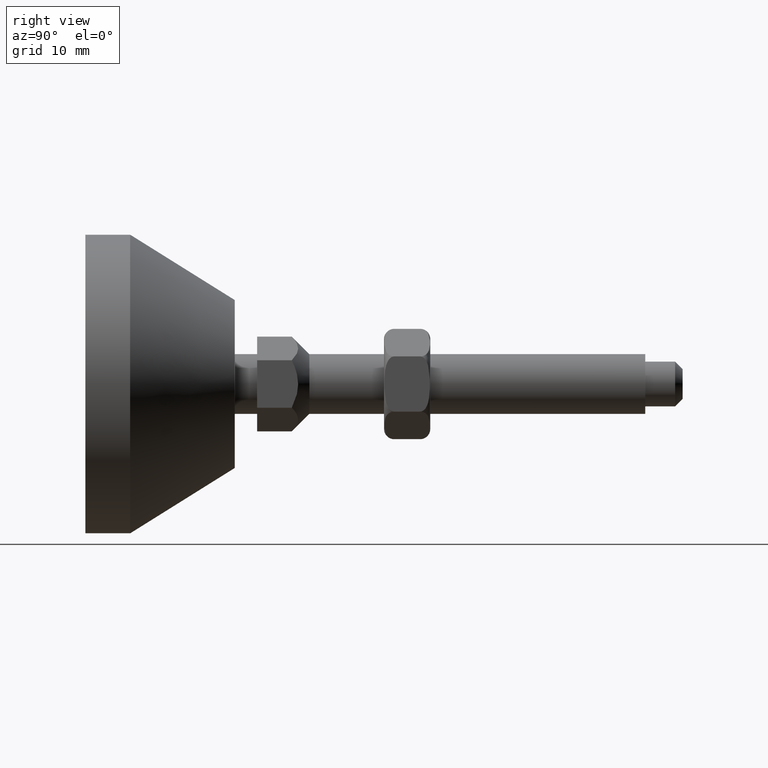
[diagram: clean part render]
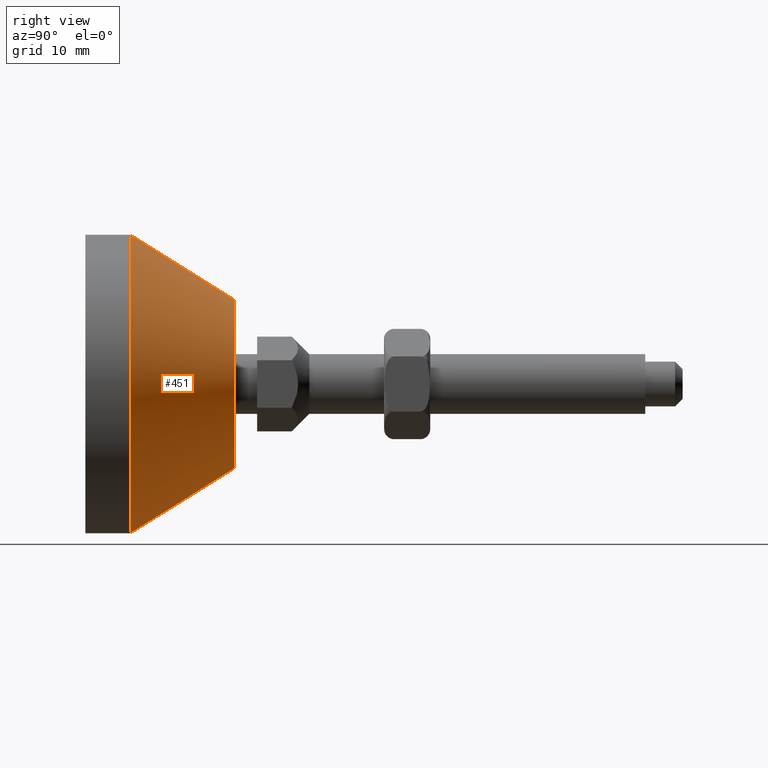
[diagram: same view with one face highlighted and labeled with its STEP entity id]
A machine part, right view. The second image highlights one B-rep face of the part: STEP entity #451.
In plain terms, the highlighted conical surface has half-angle 32 deg.
Its self-contained STEP definition (entity closure, byte-faithful):
#77 = CARTESIAN_POINT ( 'NONE',  ( 0.0000000000000000000, 20.00000000000000000, 11.25182907326940600 ) ) ;
#84 = CARTESIAN_POINT ( 'NONE',  ( -1.913622622103978900E-015, 20.00000000000000000, -11.25182907326940600 ) ) ;
#89 = CARTESIAN_POINT ( 'NONE',  ( 2.449293598294706500E-015, 6.000000000000000000, 20.00000000000000000 ) ) ;
#183 = CARTESIAN_POINT ( 'NONE',  ( 0.0000000000000000000, 6.000000000000000000, -20.00000000000000000 ) ) ;
#186 = DIRECTION ( 'NONE',  ( 0.0000000000000000000, 0.0000000000000000000, 1.000000000000000000 ) ) ;
#200 = DIRECTION ( 'NONE',  ( -0.0000000000000000000, -1.000000000000000000, -0.0000000000000000000 ) ) ;
#207 = CARTESIAN_POINT ( 'NONE',  ( 0.0000000000000000000, 6.000000000000000000, 0.0000000000000000000 ) ) ;
#241 = AXIS2_PLACEMENT_3D ( 'NONE', #207, #200, #186 ) ;
#247 = VERTEX_POINT ( 'NONE', #183 ) ;
#394 = EDGE_LOOP ( 'NONE', ( #628, #629, #630, #631 ) ) ;
#451 = ADVANCED_FACE ( 'NONE', ( #673 ), #674, .T. ) ;
#506 = EDGE_CURVE ( 'NONE', #1470, #247, #736, .T. ) ;
#508 = EDGE_CURVE ( 'NONE', #1463, #1475, #739, .T. ) ;
#509 = EDGE_CURVE ( 'NONE', #1475, #247, #743, .T. ) ;
#536 = EDGE_CURVE ( 'NONE', #1463, #1470, #782, .T. ) ;
#628 = ORIENTED_EDGE ( 'NONE', *, *, #506, .F. ) ;
#629 = ORIENTED_EDGE ( 'NONE', *, *, #536, .F. ) ;
#630 = ORIENTED_EDGE ( 'NONE', *, *, #508, .T. ) ;
#631 = ORIENTED_EDGE ( 'NONE', *, *, #509, .T. ) ;
#673 = FACE_OUTER_BOUND ( 'NONE', #394, .T. ) ;
#674 = CONICAL_SURFACE ( 'NONE', #241, 20.00000000000000000, 0.5585053606381859000 ) ;
#736 = LINE ( 'NONE', #1150, #738 ) ;
#738 = VECTOR ( 'NONE', #1151, 1000.000000000000000 ) ;
#739 = LINE ( 'NONE', #1155, #741 ) ;
#741 = VECTOR ( 'NONE', #1156, 1000.000000000000000 ) ;
#743 = CIRCLE ( 'NONE', #1013, 20.00000000000000000 ) ;
#782 = CIRCLE ( 'NONE', #1021, 11.25182907326940600 ) ;
#1013 = AXIS2_PLACEMENT_3D ( 'NONE', #1157, #1158, #1159 ) ;
#1021 = AXIS2_PLACEMENT_3D ( 'NONE', #1251, #1252, #1253 ) ;
#1150 = CARTESIAN_POINT ( 'NONE',  ( -2.449293598294706500E-015, 6.000000000000000000, -20.00000000000000000 ) ) ;
#1151 = DIRECTION ( 'NONE',  ( -6.489639307497153900E-017, -0.8480480961564257300, -0.5299192642332053400 ) ) ;
#1155 = CARTESIAN_POINT ( 'NONE',  ( 0.0000000000000000000, 6.000000000000000000, 20.00000000000000000 ) ) ;
#1156 = DIRECTION ( 'NONE',  ( 0.0000000000000000000, -0.8480480961564257300, 0.5299192642332053400 ) ) ;
#1157 = CARTESIAN_POINT ( 'NONE',  ( 0.0000000000000000000, 6.000000000000000000, 0.0000000000000000000 ) ) ;
#1158 = DIRECTION ( 'NONE',  ( 0.0000000000000000000, 1.000000000000000000, 0.0000000000000000000 ) ) ;
#1159 = DIRECTION ( 'NONE',  ( 0.0000000000000000000, 0.0000000000000000000, 1.000000000000000000 ) ) ;
#1251 = CARTESIAN_POINT ( 'NONE',  ( 0.0000000000000000000, 20.00000000000000000, 0.0000000000000000000 ) ) ;
#1252 = DIRECTION ( 'NONE',  ( 0.0000000000000000000, 1.000000000000000000, 0.0000000000000000000 ) ) ;
#1253 = DIRECTION ( 'NONE',  ( 0.0000000000000000000, 0.0000000000000000000, 1.000000000000000000 ) ) ;
#1463 = VERTEX_POINT ( 'NONE', #77 ) ;
#1470 = VERTEX_POINT ( 'NONE', #84 ) ;
#1475 = VERTEX_POINT ( 'NONE', #89 ) ;